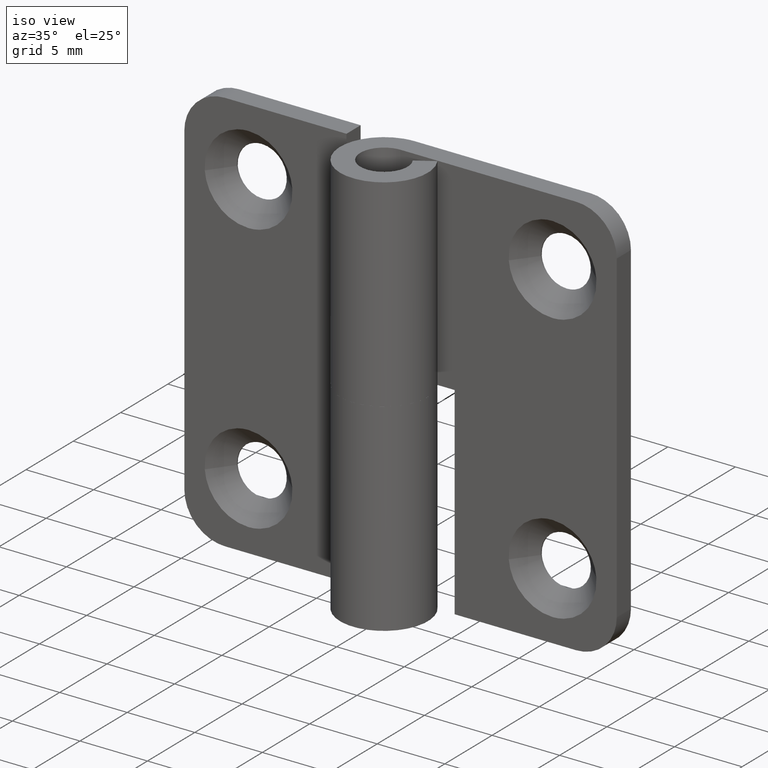
[diagram: clean part render]
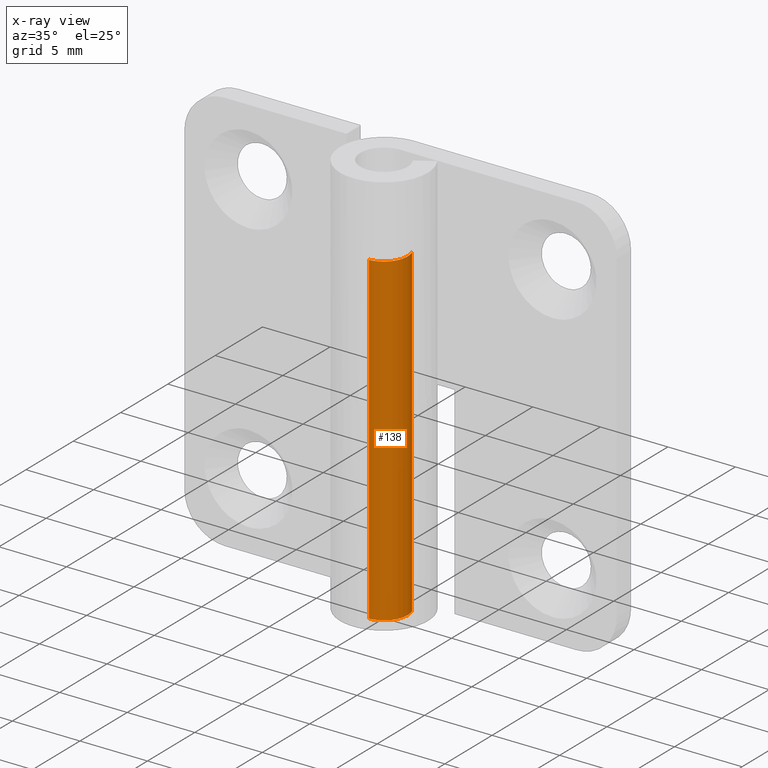
[diagram: x-ray — body ghosted, one internal face saturated and labeled with its STEP entity id]
A machine part, iso view, then the same camera in x-ray: the body is ghosted and one INTERNAL B-rep face — a face not visible from any outside direction — is saturated and labeled: STEP entity #138.
In plain terms, the highlighted face is a freeform B-spline surface patch.
Its self-contained STEP definition (entity closure, byte-faithful):
#44=CARTESIAN_POINT('',(1.638251262859150,0.615331455185251,24.600008200000005));
#45=CARTESIAN_POINT('',(1.730687033889014,0.369231540501965,24.600008200000005));
#46=CARTESIAN_POINT('',(1.746735897238267,0.106834944186000,24.600008200000008));
#47=CARTESIAN_POINT('',(1.853570841424267,-1.639900953052267,24.600008200000005));
#48=CARTESIAN_POINT('',(0.106834944186000,-1.746735897238267,24.600008200000008));
#49=CARTESIAN_POINT('',(1.638251262859150,0.615331455185251,-0.615000205000001));
#50=CARTESIAN_POINT('',(1.730687033889014,0.369231540501965,-0.615000205000001));
#51=CARTESIAN_POINT('',(1.746735897238267,0.106834944186000,-0.615000205000001));
#52=CARTESIAN_POINT('',(1.853570841424267,-1.639900953052267,-0.615000205000001));
#53=CARTESIAN_POINT('',(0.106834944186000,-1.746735897238267,-0.615000205000001));
#61=(BOUNDED_SURFACE()B_SPLINE_SURFACE(2,1,((#44,#49),(#45,#50),(#46,#51),(#47,#52),(#48,#53)),.UNSPECIFIED.,.F.,.F.,.U.)B_SPLINE_SURFACE_WITH_KNOTS((3,2,3),(2,2),(4.398229715025710,4.712388980384690,6.283185307179586),(0.0,25.215008405000010),.UNSPECIFIED.)GEOMETRIC_REPRESENTATION_ITEM()RATIONAL_B_SPLINE_SURFACE(((0.906274169979695,0.906274169979695),(0.941421356237309,0.941421356237309),(1.0,1.0),(0.707106781186548,0.707106781186548),(1.0,1.0)))REPRESENTATION_ITEM('')SURFACE());
#62=CARTESIAN_POINT('',(1.638251262852206,0.615331455203740,24.000008000000001));
#63=VERTEX_POINT('',#62);
#64=CARTESIAN_POINT('',(1.750000000000000,0.0,24.000008000000001));
#65=VERTEX_POINT('',#64);
#66=CARTESIAN_POINT('',(1.638251262852206,0.615331455203740,24.000008000000005));
#67=CARTESIAN_POINT('',(1.750000000000000,0.317812925637232,24.000008000000005));
#68=CARTESIAN_POINT('',(1.750000000000000,0.0,24.000008000000001));
#76=(BOUNDED_CURVE()B_SPLINE_CURVE(2,(#66,#67,#68),.UNSPECIFIED.,.F.,.U.)B_SPLINE_CURVE_WITH_KNOTS((3,3),(0.440284170895344,0.500000000000000),.UNSPECIFIED.)CURVE()GEOMETRIC_REPRESENTATION_ITEM()RATIONAL_B_SPLINE_CURVE((0.893499554631403,0.930038554397693,1.0))REPRESENTATION_ITEM(''));
#77=EDGE_CURVE('',#63,#65,#76,.T.);
#78=ORIENTED_EDGE('',*,*,#77,.T.);
#79=CARTESIAN_POINT('',(0.106834944199255,-1.746735897237765,24.000007999996509));
#80=VERTEX_POINT('',#79);
#81=CARTESIAN_POINT('',(1.750000000000000,0.0,24.000008000000001));
#82=CARTESIAN_POINT('',(1.750000000000000,-1.646235617034971,24.000008000000005));
#83=CARTESIAN_POINT('',(0.106834944199255,-1.746735897237765,24.000007999996502));
#91=(BOUNDED_CURVE()B_SPLINE_CURVE(2,(#81,#82,#83),.UNSPECIFIED.,.F.,.U.)B_SPLINE_CURVE_WITH_KNOTS((3,3),(0.500000000000000,0.739332962236738),.UNSPECIFIED.)CURVE()GEOMETRIC_REPRESENTATION_ITEM()RATIONAL_B_SPLINE_CURVE((1.0,0.719603993289293,0.976072041661992))REPRESENTATION_ITEM(''));
#92=EDGE_CURVE('',#65,#80,#91,.T.);
#93=ORIENTED_EDGE('',*,*,#92,.T.);
#94=CARTESIAN_POINT('',(0.106834944209208,-1.746735897236847,-2.220446E-016));
#95=VERTEX_POINT('',#94);
#96=CARTESIAN_POINT('',(0.106834944199255,-1.746735897237765,24.000007999996509));
#97=CARTESIAN_POINT('',(0.106834944209208,-1.746735897236847,-2.220446E-016));
#98=QUASI_UNIFORM_CURVE('',1,(#96,#97),.UNSPECIFIED.,.F.,.U.);
#99=EDGE_CURVE('',#80,#95,#98,.T.);
#100=ORIENTED_EDGE('',*,*,#99,.T.);
#101=CARTESIAN_POINT('',(1.750000000000000,0.0,0.0));
#102=VERTEX_POINT('',#101);
#103=CARTESIAN_POINT('',(1.750000000000000,0.0,0.0));
#104=CARTESIAN_POINT('',(1.750000000000001,-1.646235617041147,0.0));
#105=CARTESIAN_POINT('',(0.106834944209208,-1.746735897236847,-2.220446E-016));
#113=(BOUNDED_CURVE()B_SPLINE_CURVE(2,(#103,#104,#105),.UNSPECIFIED.,.F.,.U.)B_SPLINE_CURVE_WITH_KNOTS((3,3),(0.500000000000000,0.739332962237384),.UNSPECIFIED.)CURVE()GEOMETRIC_REPRESENTATION_ITEM()RATIONAL_B_SPLINE_CURVE((1.0,0.719603993288536,0.976072041663377))REPRESENTATION_ITEM(''));
#114=EDGE_CURVE('',#102,#95,#113,.T.);
#115=ORIENTED_EDGE('',*,*,#114,.F.);
#116=CARTESIAN_POINT('',(1.638251262852711,0.615331455202394,-2.450082E-016));
#117=VERTEX_POINT('',#116);
#118=CARTESIAN_POINT('',(1.638251262852711,0.615331455202394,-2.450082E-016));
#119=CARTESIAN_POINT('',(1.750000000000000,0.317812925635747,0.0));
#120=CARTESIAN_POINT('',(1.750000000000000,0.0,0.0));
#128=(BOUNDED_CURVE()B_SPLINE_CURVE(2,(#118,#119,#120),.UNSPECIFIED.,.F.,.U.)B_SPLINE_CURVE_WITH_KNOTS((3,3),(0.440284170895604,0.500000000000000),.UNSPECIFIED.)CURVE()GEOMETRIC_REPRESENTATION_ITEM()RATIONAL_B_SPLINE_CURVE((0.893499554631720,0.930038554397997,1.0))REPRESENTATION_ITEM(''));
#129=EDGE_CURVE('',#117,#102,#128,.T.);
#130=ORIENTED_EDGE('',*,*,#129,.F.);
#131=CARTESIAN_POINT('',(1.638251262852206,0.615331455203740,24.000008000000001));
#132=CARTESIAN_POINT('',(1.638251262852711,0.615331455202394,-2.450082E-016));
#133=QUASI_UNIFORM_CURVE('',1,(#131,#132),.UNSPECIFIED.,.F.,.U.);
#134=EDGE_CURVE('',#63,#117,#133,.T.);
#135=ORIENTED_EDGE('',*,*,#134,.F.);
#136=EDGE_LOOP('',(#78,#93,#100,#115,#130,#135));
#137=FACE_OUTER_BOUND('',#136,.T.);
#138=ADVANCED_FACE('',(#137),#61,.T.);